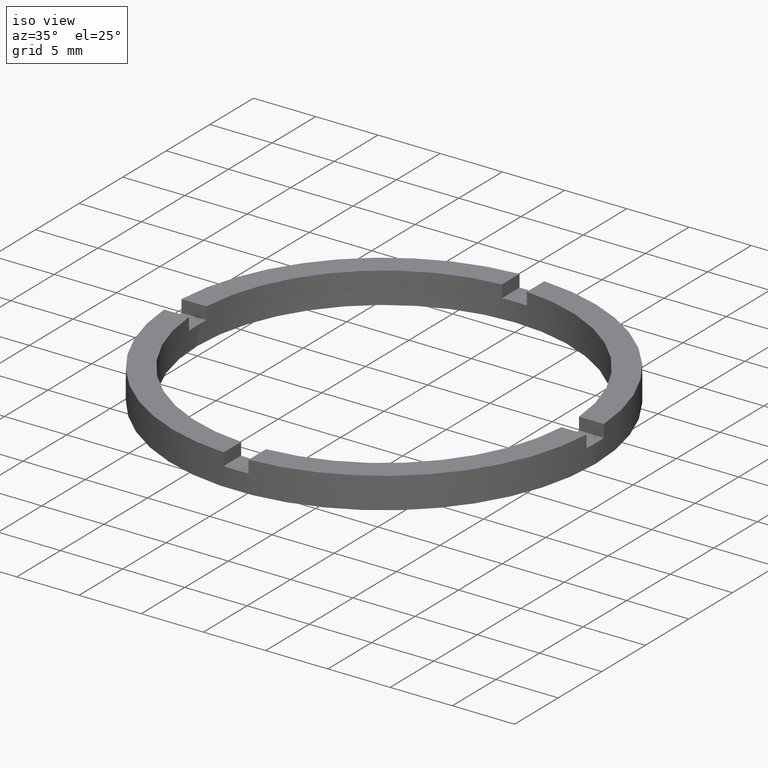
[diagram: clean part render]
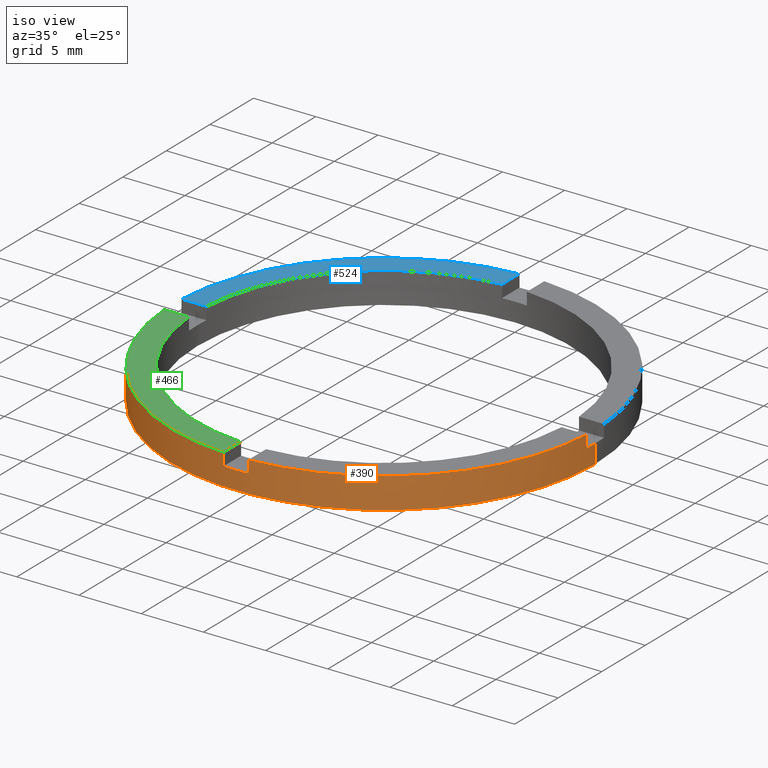
[diagram: same view with three faces highlighted in distinct colors, each labeled with its STEP entity id]
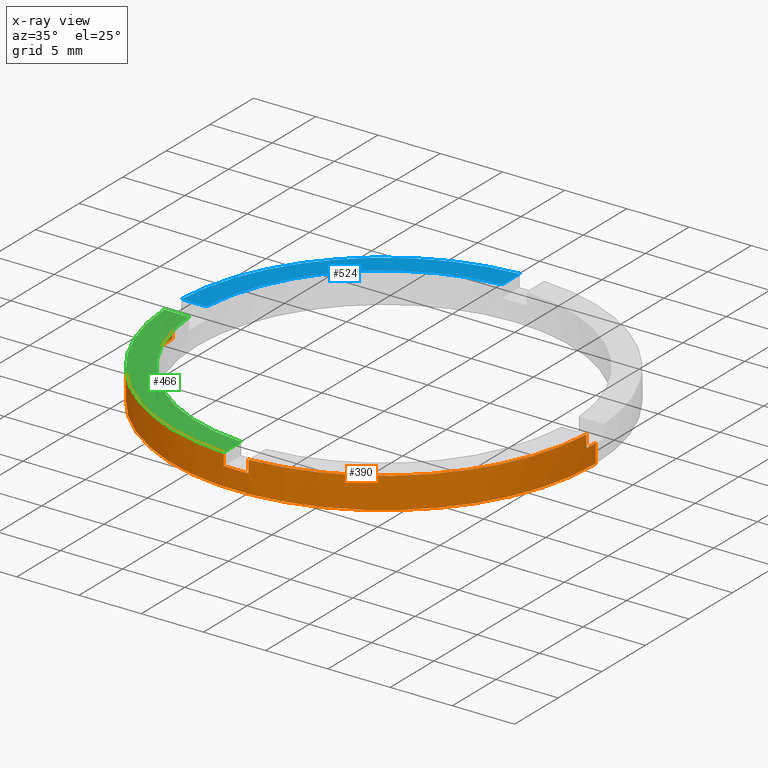
[diagram: x-ray of the same camera — body ghosted, the three highlighted faces saturated]
A machine part, iso view with three faces highlighted in distinct colors.
The next image is the same camera in x-ray (body ghosted, the three faces saturated) — at least one of them is partly hidden behind the body in this view.
Their STEP definitions:

[orange] entity #390 — the highlighted cylindrical surface (partial cylindrical patch) has radius 17 mm, axis along (-0, -0, -1).
#4 = DIRECTION ( 'NONE',  ( -0.000000000000000000, -0.000000000000000000, -1.000000000000000000 ) ) ;
#7 = CARTESIAN_POINT ( 'NONE',  ( -16.97056274847713908, -1.000000000000023759, 1.500000000000000000 ) ) ;
#11 = DIRECTION ( 'NONE',  ( 1.000000000000000000, 0.000000000000000000, 0.000000000000000000 ) ) ;
#19 = VECTOR ( 'NONE', #507, 1000.000000000000000 ) ;
#20 = DIRECTION ( 'NONE',  ( -1.000000000000000000, 0.000000000000000000, 0.000000000000000000 ) ) ;
#21 = VECTOR ( 'NONE', #522, 1000.000000000000000 ) ;
#31 = CIRCLE ( 'NONE', #234, 17.00000000000000000 ) ;
#34 = VECTOR ( 'NONE', #84, 1000.000000000000000 ) ;
#37 = LINE ( 'NONE', #513, #19 ) ;
#74 = DIRECTION ( 'NONE',  ( -0.000000000000000000, -0.000000000000000000, -1.000000000000000000 ) ) ;
#84 = DIRECTION ( 'NONE',  ( -0.000000000000000000, -0.000000000000000000, -1.000000000000000000 ) ) ;
#85 = CARTESIAN_POINT ( 'NONE',  ( 17.00000000000000000, 2.081899558550500280E-15, 1.500000000000000000 ) ) ;
#86 = AXIS2_PLACEMENT_3D ( 'NONE', #769, #150, #448 ) ;
#94 = AXIS2_PLACEMENT_3D ( 'NONE', #209, #511, #287 ) ;
#102 = DIRECTION ( 'NONE',  ( -0.000000000000000000, 0.000000000000000000, 1.000000000000000000 ) ) ;
#111 = ORIENTED_EDGE ( 'NONE', *, *, #198, .F. ) ;
#116 = VERTEX_POINT ( 'NONE', #755 ) ;
#126 = AXIS2_PLACEMENT_3D ( 'NONE', #191, #102, #250 ) ;
#139 = VECTOR ( 'NONE', #581, 1000.000000000000000 ) ;
#147 = EDGE_CURVE ( 'NONE', #630, #688, #280, .T. ) ;
#150 = DIRECTION ( 'NONE',  ( 0.000000000000000000, 0.000000000000000000, 1.000000000000000000 ) ) ;
#151 = CIRCLE ( 'NONE', #94, 17.00000000000000000 ) ;
#163 = LINE ( 'NONE', #735, #655 ) ;
#185 = ORIENTED_EDGE ( 'NONE', *, *, #462, .T. ) ;
#186 = CARTESIAN_POINT ( 'NONE',  ( -17.00000000000000000, 0.000000000000000000, 1.500000000000000000 ) ) ;
#191 = CARTESIAN_POINT ( 'NONE',  ( 0.000000000000000000, 0.000000000000000000, 1.500000000000000000 ) ) ;
#194 = EDGE_CURVE ( 'NONE', #725, #709, #270, .T. ) ;
#198 = EDGE_CURVE ( 'NONE', #443, #339, #31, .T. ) ;
#201 = EDGE_CURVE ( 'NONE', #354, #116, #540, .T. ) ;
#206 = CARTESIAN_POINT ( 'NONE',  ( -16.97056274847713908, -1.000000000000023759, 2.500000000000000000 ) ) ;
#207 = ORIENTED_EDGE ( 'NONE', *, *, #258, .F. ) ;
#209 = CARTESIAN_POINT ( 'NONE',  ( 0.000000000000000000, 0.000000000000000000, 2.500000000000000000 ) ) ;
#210 = VERTEX_POINT ( 'NONE', #475 ) ;
#220 = DIRECTION ( 'NONE',  ( 0.000000000000000000, 0.000000000000000000, 1.000000000000000000 ) ) ;
#227 = DIRECTION ( 'NONE',  ( 1.000000000000000000, 0.000000000000000000, 0.000000000000000000 ) ) ;
#234 = AXIS2_PLACEMENT_3D ( 'NONE', #299, #649, #11 ) ;
#237 = CARTESIAN_POINT ( 'NONE',  ( 0.000000000000000000, 0.000000000000000000, 0.000000000000000000 ) ) ;
#250 = DIRECTION ( 'NONE',  ( 1.000000000000000000, 0.000000000000000000, 0.000000000000000000 ) ) ;
#258 = EDGE_CURVE ( 'NONE', #365, #688, #554, .T. ) ;
#270 = CIRCLE ( 'NONE', #126, 17.00000000000000000 ) ;
#280 = LINE ( 'NONE', #445, #34 ) ;
#287 = DIRECTION ( 'NONE',  ( 1.000000000000000000, 0.000000000000000000, 0.000000000000000000 ) ) ;
#291 = LINE ( 'NONE', #650, #538 ) ;
#293 = CARTESIAN_POINT ( 'NONE',  ( -1.000000000000162537, -16.97056274847713198, 1.500000000000000000 ) ) ;
#298 = FACE_OUTER_BOUND ( 'NONE', #342, .T. ) ;
#299 = CARTESIAN_POINT ( 'NONE',  ( 0.000000000000000000, 0.000000000000000000, 1.500000000000000000 ) ) ;
#301 = CYLINDRICAL_SURFACE ( 'NONE', #528, 17.00000000000000000 ) ;
#307 = ORIENTED_EDGE ( 'NONE', *, *, #775, .F. ) ;
#334 = EDGE_CURVE ( 'NONE', #443, #210, #291, .T. ) ;
#336 = DIRECTION ( 'NONE',  ( 0.000000000000000000, 0.000000000000000000, 1.000000000000000000 ) ) ;
#339 = VERTEX_POINT ( 'NONE', #85 ) ;
#342 = EDGE_LOOP ( 'NONE', ( #679, #111, #617, #575, #185, #631, #366, #307, #729, #207, #644, #738 ) ) ;
#346 = VERTEX_POINT ( 'NONE', #385 ) ;
#354 = VERTEX_POINT ( 'NONE', #408 ) ;
#359 = DIRECTION ( 'NONE',  ( 1.000000000000000000, 0.000000000000000000, 0.000000000000000000 ) ) ;
#360 = CARTESIAN_POINT ( 'NONE',  ( 0.9999999999998375744, -16.97056274847715329, 2.500000000000000000 ) ) ;
#365 = VERTEX_POINT ( 'NONE', #186 ) ;
#366 = ORIENTED_EDGE ( 'NONE', *, *, #476, .T. ) ;
#385 = CARTESIAN_POINT ( 'NONE',  ( -1.000000000000162537, -16.97056274847713198, 2.500000000000000000 ) ) ;
#390 = ADVANCED_FACE ( 'NONE', ( #298 ), #301, .T. ) ;
#408 = CARTESIAN_POINT ( 'NONE',  ( -17.00000000000000000, 0.000000000000000000, 0.000000000000000000 ) ) ;
#414 = CARTESIAN_POINT ( 'NONE',  ( 0.9999999999998375744, -16.97056274847715329, 1.500000000000000000 ) ) ;
#443 = VERTEX_POINT ( 'NONE', #680 ) ;
#445 = CARTESIAN_POINT ( 'NONE',  ( -16.97056274847713908, -1.000000000000023759, 2.500000000000000000 ) ) ;
#448 = DIRECTION ( 'NONE',  ( 1.000000000000000000, 0.000000000000000000, 0.000000000000000000 ) ) ;
#462 = EDGE_CURVE ( 'NONE', #713, #709, #37, .T. ) ;
#475 = CARTESIAN_POINT ( 'NONE',  ( 16.97056274847713198, -1.000000000000158984, 2.500000000000000000 ) ) ;
#476 = EDGE_CURVE ( 'NONE', #725, #346, #533, .T. ) ;
#507 = DIRECTION ( 'NONE',  ( -0.000000000000000000, -0.000000000000000000, -1.000000000000000000 ) ) ;
#511 = DIRECTION ( 'NONE',  ( 0.000000000000000000, 0.000000000000000000, 1.000000000000000000 ) ) ;
#513 = CARTESIAN_POINT ( 'NONE',  ( 0.9999999999998375744, -16.97056274847715329, 2.500000000000000000 ) ) ;
#521 = CARTESIAN_POINT ( 'NONE',  ( -17.00000000000000000, 0.000000000000000000, 2.500000000000000000 ) ) ;
#522 = DIRECTION ( 'NONE',  ( 0.000000000000000000, 0.000000000000000000, 1.000000000000000000 ) ) ;
#528 = AXIS2_PLACEMENT_3D ( 'NONE', #723, #4, #20 ) ;
#533 = LINE ( 'NONE', #635, #21 ) ;
#538 = VECTOR ( 'NONE', #220, 1000.000000000000000 ) ;
#540 = CIRCLE ( 'NONE', #562, 17.00000000000000000 ) ;
#554 = CIRCLE ( 'NONE', #759, 17.00000000000000000 ) ;
#562 = AXIS2_PLACEMENT_3D ( 'NONE', #237, #656, #227 ) ;
#575 = ORIENTED_EDGE ( 'NONE', *, *, #751, .F. ) ;
#577 = EDGE_CURVE ( 'NONE', #339, #116, #163, .T. ) ;
#581 = DIRECTION ( 'NONE',  ( -0.000000000000000000, -0.000000000000000000, -1.000000000000000000 ) ) ;
#596 = CARTESIAN_POINT ( 'NONE',  ( 0.000000000000000000, 0.000000000000000000, 1.500000000000000000 ) ) ;
#617 = ORIENTED_EDGE ( 'NONE', *, *, #334, .T. ) ;
#630 = VERTEX_POINT ( 'NONE', #206 ) ;
#631 = ORIENTED_EDGE ( 'NONE', *, *, #194, .F. ) ;
#635 = CARTESIAN_POINT ( 'NONE',  ( -1.000000000000162537, -16.97056274847713198, 2.500000000000000000 ) ) ;
#644 = ORIENTED_EDGE ( 'NONE', *, *, #774, .T. ) ;
#649 = DIRECTION ( 'NONE',  ( 0.000000000000000000, 0.000000000000000000, 1.000000000000000000 ) ) ;
#650 = CARTESIAN_POINT ( 'NONE',  ( 16.97056274847713198, -1.000000000000158984, 2.500000000000000000 ) ) ;
#655 = VECTOR ( 'NONE', #74, 1000.000000000000000 ) ;
#656 = DIRECTION ( 'NONE',  ( 0.000000000000000000, 0.000000000000000000, 1.000000000000000000 ) ) ;
#664 = LINE ( 'NONE', #521, #139 ) ;
#676 = CIRCLE ( 'NONE', #86, 17.00000000000000000 ) ;
#679 = ORIENTED_EDGE ( 'NONE', *, *, #577, .F. ) ;
#680 = CARTESIAN_POINT ( 'NONE',  ( 16.97056274847713198, -1.000000000000158984, 1.500000000000000000 ) ) ;
#688 = VERTEX_POINT ( 'NONE', #7 ) ;
#709 = VERTEX_POINT ( 'NONE', #414 ) ;
#713 = VERTEX_POINT ( 'NONE', #360 ) ;
#723 = CARTESIAN_POINT ( 'NONE',  ( 0.000000000000000000, 0.000000000000000000, 2.500000000000000000 ) ) ;
#725 = VERTEX_POINT ( 'NONE', #293 ) ;
#729 = ORIENTED_EDGE ( 'NONE', *, *, #147, .T. ) ;
#735 = CARTESIAN_POINT ( 'NONE',  ( 17.00000000000000000, 2.081899558550500280E-15, 2.500000000000000000 ) ) ;
#738 = ORIENTED_EDGE ( 'NONE', *, *, #201, .T. ) ;
#751 = EDGE_CURVE ( 'NONE', #713, #210, #676, .T. ) ;
#755 = CARTESIAN_POINT ( 'NONE',  ( 17.00000000000000000, 2.081899558550500280E-15, 0.000000000000000000 ) ) ;
#759 = AXIS2_PLACEMENT_3D ( 'NONE', #596, #336, #359 ) ;
#769 = CARTESIAN_POINT ( 'NONE',  ( 0.000000000000000000, 0.000000000000000000, 2.500000000000000000 ) ) ;
#774 = EDGE_CURVE ( 'NONE', #365, #354, #664, .T. ) ;
#775 = EDGE_CURVE ( 'NONE', #630, #346, #151, .T. ) ;

[blue] entity #524 — the highlighted planar face has unit normal (0, 0, 1).
#14 = DIRECTION ( 'NONE',  ( 0.000000000000000000, 0.000000000000000000, 1.000000000000000000 ) ) ;
#24 = VECTOR ( 'NONE', #137, 1000.000000000000000 ) ;
#29 = CARTESIAN_POINT ( 'NONE',  ( -1.000000000000025091, 16.97056274847713908, 2.500000000000000000 ) ) ;
#46 = VECTOR ( 'NONE', #653, 1000.000000000000000 ) ;
#49 = LINE ( 'NONE', #692, #24 ) ;
#50 = PLANE ( 'NONE',  #134 ) ;
#51 = CIRCLE ( 'NONE', #279, 17.00000000000000000 ) ;
#88 = DIRECTION ( 'NONE',  ( 1.000000000000000000, 0.000000000000000000, -0.000000000000000000 ) ) ;
#92 = EDGE_CURVE ( 'NONE', #157, #189, #49, .T. ) ;
#117 = CARTESIAN_POINT ( 'NONE',  ( -1.000000000000025091, 14.96662954709576354, 2.500000000000000000 ) ) ;
#129 = ORIENTED_EDGE ( 'NONE', *, *, #256, .F. ) ;
#134 = AXIS2_PLACEMENT_3D ( 'NONE', #770, #152, #88 ) ;
#137 = DIRECTION ( 'NONE',  ( -0.000000000000000000, -1.000000000000000000, -0.000000000000000000 ) ) ;
#152 = DIRECTION ( 'NONE',  ( 0.000000000000000000, 0.000000000000000000, 1.000000000000000000 ) ) ;
#157 = VERTEX_POINT ( 'NONE', #29 ) ;
#175 = FACE_OUTER_BOUND ( 'NONE', #693, .T. ) ;
#189 = VERTEX_POINT ( 'NONE', #117 ) ;
#203 = DIRECTION ( 'NONE',  ( 1.000000000000000000, 0.000000000000000000, 0.000000000000000000 ) ) ;
#256 = EDGE_CURVE ( 'NONE', #189, #454, #559, .T. ) ;
#279 = AXIS2_PLACEMENT_3D ( 'NONE', #618, #14, #203 ) ;
#292 = DIRECTION ( 'NONE',  ( 0.000000000000000000, 0.000000000000000000, 1.000000000000000000 ) ) ;
#378 = CARTESIAN_POINT ( 'NONE',  ( -14.96662954709576709, 0.9999999999999767963, 2.500000000000000000 ) ) ;
#381 = CARTESIAN_POINT ( 'NONE',  ( -16.97056274847714263, 0.9999999999999763522, 2.500000000000000000 ) ) ;
#386 = EDGE_CURVE ( 'NONE', #454, #469, #543, .T. ) ;
#406 = AXIS2_PLACEMENT_3D ( 'NONE', #594, #292, #727 ) ;
#427 = EDGE_CURVE ( 'NONE', #157, #469, #51, .T. ) ;
#454 = VERTEX_POINT ( 'NONE', #378 ) ;
#461 = ORIENTED_EDGE ( 'NONE', *, *, #92, .F. ) ;
#469 = VERTEX_POINT ( 'NONE', #381 ) ;
#524 = ADVANCED_FACE ( 'NONE', ( #175 ), #50, .T. ) ;
#535 = CARTESIAN_POINT ( 'NONE',  ( -7.000000000000186517, 0.9999999999999781286, 2.500000000000000000 ) ) ;
#543 = LINE ( 'NONE', #535, #46 ) ;
#559 = CIRCLE ( 'NONE', #406, 15.00000000000000000 ) ;
#570 = ORIENTED_EDGE ( 'NONE', *, *, #427, .T. ) ;
#594 = CARTESIAN_POINT ( 'NONE',  ( 0.000000000000000000, 0.000000000000000000, 2.500000000000000000 ) ) ;
#618 = CARTESIAN_POINT ( 'NONE',  ( 0.000000000000000000, 0.000000000000000000, 2.500000000000000000 ) ) ;
#653 = DIRECTION ( 'NONE',  ( -1.000000000000000000, -1.734723475976807341E-16, 0.000000000000000000 ) ) ;
#692 = CARTESIAN_POINT ( 'NONE',  ( -1.000000000000025091, 7.000000000000000888, 2.500000000000000000 ) ) ;
#693 = EDGE_LOOP ( 'NONE', ( #461, #570, #732, #129 ) ) ;
#727 = DIRECTION ( 'NONE',  ( 1.000000000000000000, 0.000000000000000000, 0.000000000000000000 ) ) ;
#732 = ORIENTED_EDGE ( 'NONE', *, *, #386, .F. ) ;
#770 = CARTESIAN_POINT ( 'NONE',  ( 0.000000000000000000, 0.000000000000000000, 2.500000000000000000 ) ) ;

[green] entity #466 — the highlighted planar face has unit normal (0, 0, 1).
#2 = EDGE_CURVE ( 'NONE', #630, #715, #52, .T. ) ;
#32 = DIRECTION ( 'NONE',  ( 0.000000000000000000, 0.000000000000000000, 1.000000000000000000 ) ) ;
#52 = LINE ( 'NONE', #766, #305 ) ;
#94 = AXIS2_PLACEMENT_3D ( 'NONE', #209, #511, #287 ) ;
#131 = CARTESIAN_POINT ( 'NONE',  ( -1.000000000000163647, -7.000000000000181188, 2.500000000000000000 ) ) ;
#135 = CARTESIAN_POINT ( 'NONE',  ( -1.000000000000162759, -14.96662954709575466, 2.500000000000000000 ) ) ;
#142 = DIRECTION ( 'NONE',  ( 1.000000000000000000, 0.000000000000000000, -0.000000000000000000 ) ) ;
#151 = CIRCLE ( 'NONE', #94, 17.00000000000000000 ) ;
#205 = AXIS2_PLACEMENT_3D ( 'NONE', #555, #669, #368 ) ;
#206 = CARTESIAN_POINT ( 'NONE',  ( -16.97056274847713908, -1.000000000000023759, 2.500000000000000000 ) ) ;
#209 = CARTESIAN_POINT ( 'NONE',  ( 0.000000000000000000, 0.000000000000000000, 2.500000000000000000 ) ) ;
#213 = EDGE_LOOP ( 'NONE', ( #607, #464, #467, #432 ) ) ;
#266 = FACE_OUTER_BOUND ( 'NONE', #213, .T. ) ;
#271 = DIRECTION ( 'NONE',  ( 1.000000000000000000, 1.734723475976807341E-16, -0.000000000000000000 ) ) ;
#287 = DIRECTION ( 'NONE',  ( 1.000000000000000000, 0.000000000000000000, 0.000000000000000000 ) ) ;
#305 = VECTOR ( 'NONE', #271, 1000.000000000000000 ) ;
#346 = VERTEX_POINT ( 'NONE', #385 ) ;
#368 = DIRECTION ( 'NONE',  ( 1.000000000000000000, 0.000000000000000000, 0.000000000000000000 ) ) ;
#385 = CARTESIAN_POINT ( 'NONE',  ( -1.000000000000162537, -16.97056274847713198, 2.500000000000000000 ) ) ;
#396 = LINE ( 'NONE', #131, #684 ) ;
#420 = CIRCLE ( 'NONE', #205, 15.00000000000000000 ) ;
#431 = DIRECTION ( 'NONE',  ( 1.301042606982605321E-16, -1.000000000000000000, 0.000000000000000000 ) ) ;
#432 = ORIENTED_EDGE ( 'NONE', *, *, #775, .T. ) ;
#464 = ORIENTED_EDGE ( 'NONE', *, *, #716, .F. ) ;
#466 = ADVANCED_FACE ( 'NONE', ( #266 ), #758, .T. ) ;
#467 = ORIENTED_EDGE ( 'NONE', *, *, #2, .F. ) ;
#505 = CARTESIAN_POINT ( 'NONE',  ( -14.96662954709576354, -1.000000000000023315, 2.500000000000000000 ) ) ;
#511 = DIRECTION ( 'NONE',  ( 0.000000000000000000, 0.000000000000000000, 1.000000000000000000 ) ) ;
#555 = CARTESIAN_POINT ( 'NONE',  ( 0.000000000000000000, 0.000000000000000000, 2.500000000000000000 ) ) ;
#565 = EDGE_CURVE ( 'NONE', #636, #346, #396, .T. ) ;
#574 = AXIS2_PLACEMENT_3D ( 'NONE', #624, #32, #142 ) ;
#607 = ORIENTED_EDGE ( 'NONE', *, *, #565, .F. ) ;
#624 = CARTESIAN_POINT ( 'NONE',  ( 0.000000000000000000, 0.000000000000000000, 2.500000000000000000 ) ) ;
#630 = VERTEX_POINT ( 'NONE', #206 ) ;
#636 = VERTEX_POINT ( 'NONE', #135 ) ;
#669 = DIRECTION ( 'NONE',  ( 0.000000000000000000, 0.000000000000000000, 1.000000000000000000 ) ) ;
#684 = VECTOR ( 'NONE', #431, 1000.000000000000000 ) ;
#715 = VERTEX_POINT ( 'NONE', #505 ) ;
#716 = EDGE_CURVE ( 'NONE', #715, #636, #420, .T. ) ;
#758 = PLANE ( 'NONE',  #574 ) ;
#766 = CARTESIAN_POINT ( 'NONE',  ( -7.000000000000186517, -1.000000000000021982, 2.500000000000000000 ) ) ;
#775 = EDGE_CURVE ( 'NONE', #630, #346, #151, .T. ) ;